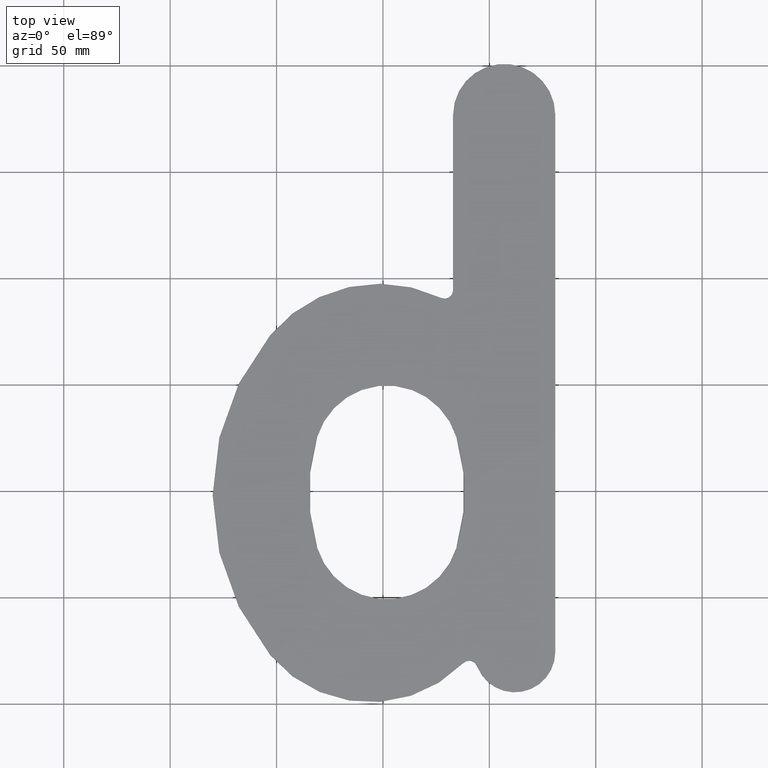
[diagram: clean part render]
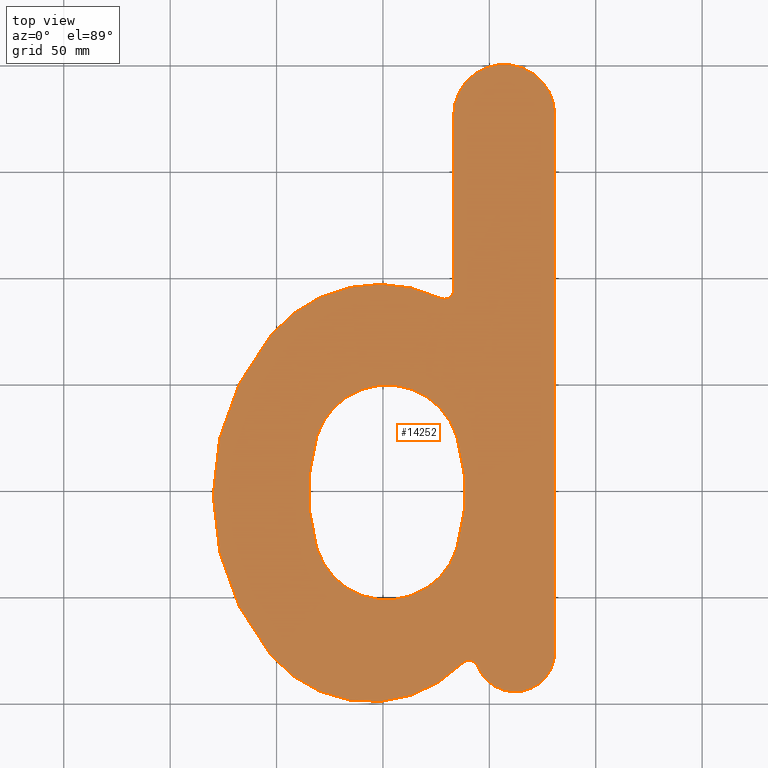
[diagram: same view with one face highlighted and labeled with its STEP entity id]
A machine part, top view. The second image highlights one B-rep face of the part: STEP entity #14252.
In plain terms, the highlighted planar face has unit normal (0, 0, -1).
Its self-contained STEP definition (entity closure, byte-faithful):
#439 = CIRCLE ( 'NONE', #23287, 66.25000000000002842 ) ;
#752 = CARTESIAN_POINT ( 'NONE',  ( -64.56973967676913162, 122.6539120534434204, 2.000000000000000000 ) ) ;
#1184 = CIRCLE ( 'NONE', #5854, 18.75000000000000355 ) ;
#1627 = EDGE_CURVE ( 'NONE', #11177, #34000, #30243, .T. ) ;
#1789 = CARTESIAN_POINT ( 'NONE',  ( -131.7879360636496244, 122.6552927540101621, 2.000000000000000000 ) ) ;
#2057 = CARTESIAN_POINT ( 'NONE',  ( -134.3175338425337486, 109.6395363830915528, 2.000000000000000000 ) ) ;
#2180 = CARTESIAN_POINT ( 'NONE',  ( -133.3015734622406114, 116.1879664225942292, 2.000000000000000000 ) ) ;
#2215 = B_SPLINE_CURVE_WITH_KNOTS ( 'NONE', 3,
 ( #18580, #752, #9892, #6895, #21681, #15713, #36580, #33495, #9762, #12725, #18847, #27765, #10016, #21557, #36448, #27636 ),
 .UNSPECIFIED., .F., .F.,
 ( 4, 2, 2, 2, 2, 2, 2, 4 ),
 ( 0.000000000000000000, 0.006595685696866415704, 0.01319137139373283141, 0.02638274278746571139, 0.03297842848433212709, 0.03957411418119854279, 0.04616979987806495850, 0.05276548557493137420 ),
 .UNSPECIFIED. ) ;
#2804 = CARTESIAN_POINT ( 'NONE',  ( -38.00000000000000000, 23.68448275862067831, 2.000000000000000000 ) ) ;
#3506 = VERTEX_POINT ( 'NONE', #34191 ) ;
#3963 = ORIENTED_EDGE ( 'NONE', *, *, #6542, .T. ) ;
#4340 = CARTESIAN_POINT ( 'NONE',  ( -152.7233160812558879, 22.26927880473905930, 2.000000000000000000 ) ) ;
#4371 = AXIS2_PLACEMENT_3D ( 'NONE', #25160, #28412, #37336 ) ;
#5194 = CARTESIAN_POINT ( 'NONE',  ( -133.2995418393338696, 81.04356905708571901, 2.000000000000000000 ) ) ;
#5687 = ORIENTED_EDGE ( 'NONE', *, *, #12405, .T. ) ;
#5854 = AXIS2_PLACEMENT_3D ( 'NONE', #38243, #20625, #26209 ) ;
#5907 = AXIS2_PLACEMENT_3D ( 'NONE', #33092, #15421, #29981 ) ;
#6220 = VERTEX_POINT ( 'NONE', #33724 ) ;
#6398 = EDGE_CURVE ( 'NONE', #36431, #23523, #18893, .T. ) ;
#6503 = DIRECTION ( 'NONE',  ( -1.000000000000000000, 0.000000000000000000, 0.000000000000000000 ) ) ;
#6542 = EDGE_CURVE ( 'NONE', #17410, #23642, #1184, .T. ) ;
#6588 = ORIENTED_EDGE ( 'NONE', *, *, #20035, .T. ) ;
#6825 = VECTOR ( 'NONE', #20220, 1000.000000000000000 ) ;
#6895 = CARTESIAN_POINT ( 'NONE',  ( -63.05855848344234005, 116.1978102532590498, 2.000000000000000444 ) ) ;
#6935 = EDGE_LOOP ( 'NONE', ( #16500, #26731, #3963, #22053, #16975, #33633, #28406, #18704, #6588, #22333 ) ) ;
#7050 = EDGE_CURVE ( 'NONE', #23642, #36794, #31474, .T. ) ;
#9247 = DIRECTION ( 'NONE',  ( 0.000000000000000000, 0.000000000000000000, 1.000000000000000000 ) ) ;
#9277 = AXIS2_PLACEMENT_3D ( 'NONE', #17671, #9247, #38401 ) ;
#9592 = DIRECTION ( 'NONE',  ( 0.000000000000000000, 0.000000000000000000, 1.000000000000000000 ) ) ;
#9762 = CARTESIAN_POINT ( 'NONE',  ( -61.49802960702444921, 94.22742421245851574, 2.000000000000000000 ) ) ;
#9892 = CARTESIAN_POINT ( 'NONE',  ( -64.00945020646092587, 120.5091151739577242, 2.000000000000000000 ) ) ;
#9895 = CIRCLE ( 'NONE', #18455, 4.250000000000003553 ) ;
#10016 = CARTESIAN_POINT ( 'NONE',  ( -63.05652686053563372, 81.05341288775056796, 2.000000000000000000 ) ) ;
#10596 = CARTESIAN_POINT ( 'NONE',  ( -19.24999999999999645, 23.68448275862067831, 2.000000000000000000 ) ) ;
#10745 = AXIS2_PLACEMENT_3D ( 'NONE', #30115, #27502, #6503 ) ;
#10903 = CARTESIAN_POINT ( 'NONE',  ( -131.7883606460071348, 74.58746725690139101, 2.000000000000000444 ) ) ;
#11119 = VERTEX_POINT ( 'NONE', #4340 ) ;
#11157 = CARTESIAN_POINT ( 'NONE',  ( -134.9369450778788462, 100.7824301908750471, 2.000000000000000000 ) ) ;
#11177 = VERTEX_POINT ( 'NONE', #28077 ) ;
#12370 = VERTEX_POINT ( 'NONE', #33137 ) ;
#12405 = EDGE_CURVE ( 'NONE', #34000, #36431, #2215, .T. ) ;
#12725 = CARTESIAN_POINT ( 'NONE',  ( -61.80792489241176924, 89.80192911678813061, 2.000000000000000888 ) ) ;
#12963 = CIRCLE ( 'NONE', #10745, 117.7500000000000142 ) ;
#13365 = EDGE_CURVE ( 'NONE', #36794, #34116, #31296, .T. ) ;
#13883 = DIRECTION ( 'NONE',  ( 0.000000000000000000, 0.000000000000000000, 1.000000000000000000 ) ) ;
#14252 = ADVANCED_FACE ( 'NONE', ( #37719, #33563 ), #29158, .F. ) ;
#14376 = DIRECTION ( 'NONE',  ( -1.000000000000000000, 0.000000000000000000, 0.000000000000000000 ) ) ;
#15375 = DIRECTION ( 'NONE',  ( -0.000000000000000000, -0.000000000000000000, -1.000000000000000000 ) ) ;
#15421 = DIRECTION ( 'NONE',  ( 0.000000000000000000, 0.000000000000000000, 1.000000000000000000 ) ) ;
#15713 = CARTESIAN_POINT ( 'NONE',  ( -61.73400716869019789, 107.5013446416161429, 1.999999999999999556 ) ) ;
#16195 = DIRECTION ( 'NONE',  ( -0.000000000000000000, -0.000000000000000000, -1.000000000000000000 ) ) ;
#16470 = DIRECTION ( 'NONE',  ( -1.000000000000000000, 0.000000000000000000, 0.000000000000000000 ) ) ;
#16500 = ORIENTED_EDGE ( 'NONE', *, *, #37763, .T. ) ;
#16545 = VECTOR ( 'NONE', #18362, 1000.000000000000000 ) ;
#16975 = ORIENTED_EDGE ( 'NONE', *, *, #13365, .T. ) ;
#16995 = CARTESIAN_POINT ( 'NONE',  ( -134.6240931540860970, 89.74003466872862589, 2.000000000000000444 ) ) ;
#17410 = VERTEX_POINT ( 'NONE', #25879 ) ;
#17671 = CARTESIAN_POINT ( 'NONE',  ( -105.9206053083213419, 61.00000000000000711, 2.000000000000000000 ) ) ;
#17716 = CARTESIAN_POINT ( 'NONE',  ( -152.7233160812559731, 172.4105930678493053, 2.000000000000000000 ) ) ;
#17976 = AXIS2_PLACEMENT_3D ( 'NONE', #30678, #15375, #24572 ) ;
#18362 = DIRECTION ( 'NONE',  ( 1.685140067300634184E-16, -1.000000000000000000, 0.000000000000000000 ) ) ;
#18455 = AXIS2_PLACEMENT_3D ( 'NONE', #25267, #16195, #16470 ) ;
#18580 = CARTESIAN_POINT ( 'NONE',  ( -65.22553334957051163, 124.7864893490658176, 2.000000000000000000 ) ) ;
#18704 = ORIENTED_EDGE ( 'NONE', *, *, #30861, .T. ) ;
#18847 = CARTESIAN_POINT ( 'NONE',  ( -62.04056648024248943, 87.60184292725325861, 2.000000000000000000 ) ) ;
#18893 = CIRCLE ( 'NONE', #4371, 34.47643156458107683 ) ;
#19369 = CARTESIAN_POINT ( 'NONE',  ( -65.22553334957052584, 72.45488996127900805, 2.000000000000000000 ) ) ;
#19728 = CARTESIAN_POINT ( 'NONE',  ( -101.6833228515124432, 130.1733868261038936, 2.000000000000000000 ) ) ;
#19733 = CARTESIAN_POINT ( 'NONE',  ( -132.3488790884922537, 120.5087080582813286, 2.000000000000000000 ) ) ;
#20035 = EDGE_CURVE ( 'NONE', #26441, #3506, #37038, .T. ) ;
#20220 = DIRECTION ( 'NONE',  ( -5.500172149356228194E-17, 1.000000000000000000, 0.000000000000000000 ) ) ;
#20255 = CARTESIAN_POINT ( 'NONE',  ( -65.22553334957051163, 124.7864893490658176, 2.000000000000000000 ) ) ;
#20364 = ORIENTED_EDGE ( 'NONE', *, *, #6398, .T. ) ;
#20519 = CIRCLE ( 'NONE', #30962, 4.249999999999976019 ) ;
#20625 = DIRECTION ( 'NONE',  ( 0.000000000000000000, 0.000000000000000000, 1.000000000000000000 ) ) ;
#21189 = AXIS2_PLACEMENT_3D ( 'NONE', #2804, #38211, #14376 ) ;
#21557 = CARTESIAN_POINT ( 'NONE',  ( -64.00922123428404120, 76.73267125206348283, 2.000000000000001332 ) ) ;
#21594 = DIRECTION ( 'NONE',  ( -0.000000000000000000, -0.000000000000000000, -1.000000000000000000 ) ) ;
#21681 = CARTESIAN_POINT ( 'NONE',  ( -62.66808548257163380, 114.0312856745152175, 2.000000000000000000 ) ) ;
#22053 = ORIENTED_EDGE ( 'NONE', *, *, #7050, .T. ) ;
#22333 = ORIENTED_EDGE ( 'NONE', *, *, #36469, .T. ) ;
#22379 = VERTEX_POINT ( 'NONE', #37296 ) ;
#22585 = CARTESIAN_POINT ( 'NONE',  ( -131.1325669732057406, 72.45488996127893699, 2.000000000000000000 ) ) ;
#22753 = EDGE_CURVE ( 'NONE', #34116, #12370, #23940, .T. ) ;
#23287 = AXIS2_PLACEMENT_3D ( 'NONE', #19728, #13883, #28254 ) ;
#23523 = VERTEX_POINT ( 'NONE', #35795 ) ;
#23642 = VERTEX_POINT ( 'NONE', #28514 ) ;
#23856 = ORIENTED_EDGE ( 'NONE', *, *, #33857, .T. ) ;
#23940 = LINE ( 'NONE', #30418, #16545 ) ;
#23942 = CARTESIAN_POINT ( 'NONE',  ( -59.49641983515524402, 15.50500024010252531, 2.000000000000000000 ) ) ;
#24359 = CARTESIAN_POINT ( 'NONE',  ( -43.00000000000000711, 275.9999999999999432, 2.000000000000000000 ) ) ;
#24572 = DIRECTION ( 'NONE',  ( -1.000000000000000000, 0.000000000000000000, 0.000000000000000000 ) ) ;
#25160 = CARTESIAN_POINT ( 'NONE',  ( -98.17905016138814744, 82.58850053009884107, 2.000000000000000000 ) ) ;
#25267 = CARTESIAN_POINT ( 'NONE',  ( -71.00000000000000000, 193.6460872475437895, 2.000000000000000000 ) ) ;
#25879 = CARTESIAN_POINT ( 'NONE',  ( -55.52425530039829482, 17.01642635765479028, 2.000000000000000000 ) ) ;
#26209 = DIRECTION ( 'NONE',  ( -1.000000000000000000, 0.000000000000000000, 0.000000000000000000 ) ) ;
#26441 = VERTEX_POINT ( 'NONE', #17716 ) ;
#26731 = ORIENTED_EDGE ( 'NONE', *, *, #29626, .T. ) ;
#26956 = EDGE_CURVE ( 'NONE', #12370, #6220, #9895, .T. ) ;
#27502 = DIRECTION ( 'NONE',  ( 0.000000000000000000, 0.000000000000000000, 1.000000000000000000 ) ) ;
#27636 = CARTESIAN_POINT ( 'NONE',  ( -65.22553334957052584, 72.45488996127900805, 2.000000000000000000 ) ) ;
#27765 = CARTESIAN_POINT ( 'NONE',  ( -62.66489108057302104, 83.22758866134893196, 2.000000000000000888 ) ) ;
#28077 = CARTESIAN_POINT ( 'NONE',  ( -131.1325669732057122, 124.7864893490657749, 2.000000000000000000 ) ) ;
#28254 = DIRECTION ( 'NONE',  ( -1.000000000000000000, 0.000000000000000000, 0.000000000000000000 ) ) ;
#28406 = ORIENTED_EDGE ( 'NONE', *, *, #26956, .T. ) ;
#28412 = DIRECTION ( 'NONE',  ( -0.000000000000000000, -0.000000000000000000, -1.000000000000000000 ) ) ;
#28514 = CARTESIAN_POINT ( 'NONE',  ( -19.24999999999999645, 23.68448275862068186, 2.000000000000000000 ) ) ;
#28536 = CARTESIAN_POINT ( 'NONE',  ( -134.8600707157517888, 103.0139550978862815, 2.000000000000000000 ) ) ;
#28539 = EDGE_LOOP ( 'NONE', ( #23856, #32078, #5687, #20364 ) ) ;
#29158 = PLANE ( 'NONE',  #21189 ) ;
#29626 = EDGE_CURVE ( 'NONE', #22379, #17410, #20519, .T. ) ;
#29981 = DIRECTION ( 'NONE',  ( -1.000000000000000000, 3.535742116640625337E-15, 0.000000000000000000 ) ) ;
#30115 = CARTESIAN_POINT ( 'NONE',  ( -62.00695075593827710, 97.33993593629419649, 2.000000000000000000 ) ) ;
#30243 = CIRCLE ( 'NONE', #17976, 34.47643156458107683 ) ;
#30418 = CARTESIAN_POINT ( 'NONE',  ( -66.74999999999997158, 23.68448275862067476, 2.000000000000000000 ) ) ;
#30585 = DIRECTION ( 'NONE',  ( -1.000000000000000000, 0.000000000000000000, 0.000000000000000000 ) ) ;
#30678 = CARTESIAN_POINT ( 'NONE',  ( -98.17905016138811902, 114.6528787802459703, 2.000000000000000000 ) ) ;
#30861 = EDGE_CURVE ( 'NONE', #6220, #26441, #439, .T. ) ;
#30962 = AXIS2_PLACEMENT_3D ( 'NONE', #23942, #21594, #33170 ) ;
#31201 = B_SPLINE_CURVE_WITH_KNOTS ( 'NONE', 3,
 ( #22585, #10903, #31935, #5194, #37190, #16995, #31685, #11157, #28536, #31803, #2057, #34490, #2180, #19733, #1789, #37712 ),
 .UNSPECIFIED., .F., .F.,
 ( 4, 2, 2, 2, 2, 2, 2, 4 ),
 ( 0.000000000000000000, 0.006595685696866429581, 0.01319137139373285916, 0.02638274278746567669, 0.03297842848433210627, 0.03957411418119853586, 0.04616979987806496544, 0.05276548557493138808 ),
 .UNSPECIFIED. ) ;
#31296 = CIRCLE ( 'NONE', #35036, 23.75000000000000711 ) ;
#31474 = LINE ( 'NONE', #10596, #6825 ) ;
#31545 = CARTESIAN_POINT ( 'NONE',  ( -19.25000000000001066, 275.9999999999999432, 2.000000000000000000 ) ) ;
#31685 = CARTESIAN_POINT ( 'NONE',  ( -134.9331223623160554, 94.13346469621211554, 2.000000000000000444 ) ) ;
#31803 = CARTESIAN_POINT ( 'NONE',  ( -134.5501754303644475, 107.4394501935566808, 1.999999999999999556 ) ) ;
#31935 = CARTESIAN_POINT ( 'NONE',  ( -132.3486501163153264, 76.73226413638704457, 2.000000000000000000 ) ) ;
#32078 = ORIENTED_EDGE ( 'NONE', *, *, #1627, .T. ) ;
#33092 = CARTESIAN_POINT ( 'NONE',  ( -62.00695075593827710, 97.33993593629419649, 2.000000000000000000 ) ) ;
#33137 = CARTESIAN_POINT ( 'NONE',  ( -66.75000000000000000, 193.6460872475437895, 2.000000000000000000 ) ) ;
#33170 = DIRECTION ( 'NONE',  ( -1.000000000000000000, 0.000000000000000000, 0.000000000000000000 ) ) ;
#33495 = CARTESIAN_POINT ( 'NONE',  ( -61.42115524489735634, 96.45894911946972172, 2.000000000000000000 ) ) ;
#33563 = FACE_OUTER_BOUND ( 'NONE', #6935, .T. ) ;
#33633 = ORIENTED_EDGE ( 'NONE', *, *, #22753, .T. ) ;
#33724 = CARTESIAN_POINT ( 'NONE',  ( -72.84970385984294694, 189.8197187824215177, 2.000000000000000000 ) ) ;
#33857 = EDGE_CURVE ( 'NONE', #23523, #11177, #31201, .T. ) ;
#34000 = VERTEX_POINT ( 'NONE', #20255 ) ;
#34116 = VERTEX_POINT ( 'NONE', #36709 ) ;
#34191 = CARTESIAN_POINT ( 'NONE',  ( -179.7569507559382771, 97.33993593629419649, 2.000000000000000000 ) ) ;
#34490 = CARTESIAN_POINT ( 'NONE',  ( -133.6932092422032099, 114.0137906489958652, 1.999999999999999556 ) ) ;
#35036 = AXIS2_PLACEMENT_3D ( 'NONE', #24359, #9592, #30585 ) ;
#35795 = CARTESIAN_POINT ( 'NONE',  ( -131.1325669732057406, 72.45488996127893699, 2.000000000000000000 ) ) ;
#36431 = VERTEX_POINT ( 'NONE', #19369 ) ;
#36448 = CARTESIAN_POINT ( 'NONE',  ( -64.57016425912664204, 74.58608655633464934, 1.999999999999999556 ) ) ;
#36469 = EDGE_CURVE ( 'NONE', #3506, #11119, #12963, .T. ) ;
#36580 = CARTESIAN_POINT ( 'NONE',  ( -61.42497796046017555, 103.1079146141326675, 2.000000000000000444 ) ) ;
#36709 = CARTESIAN_POINT ( 'NONE',  ( -66.75000000000001421, 275.9999999999999432, 2.000000000000000000 ) ) ;
#36794 = VERTEX_POINT ( 'NONE', #31545 ) ;
#37038 = CIRCLE ( 'NONE', #5907, 117.7500000000000142 ) ;
#37055 = CIRCLE ( 'NONE', #9277, 60.75000000000000000 ) ;
#37190 = CARTESIAN_POINT ( 'NONE',  ( -133.6900148402045545, 83.21009363582953711, 1.999999999999999556 ) ) ;
#37296 = CARTESIAN_POINT ( 'NONE',  ( -62.53184734686222157, 18.47967330132660635, 2.000000000000000000 ) ) ;
#37336 = DIRECTION ( 'NONE',  ( -1.000000000000000000, 0.000000000000000000, 0.000000000000000000 ) ) ;
#37712 = CARTESIAN_POINT ( 'NONE',  ( -131.1325669732057122, 124.7864893490657749, 2.000000000000000000 ) ) ;
#37719 = FACE_BOUND ( 'NONE', #28539, .T. ) ;
#37763 = EDGE_CURVE ( 'NONE', #11119, #22379, #37055, .T. ) ;
#38211 = DIRECTION ( 'NONE',  ( -0.000000000000000000, 0.000000000000000000, -1.000000000000000000 ) ) ;
#38243 = CARTESIAN_POINT ( 'NONE',  ( -38.00000000000000000, 23.68448275862067831, 2.000000000000000000 ) ) ;
#38401 = DIRECTION ( 'NONE',  ( -1.000000000000000000, 0.000000000000000000, 0.000000000000000000 ) ) ;